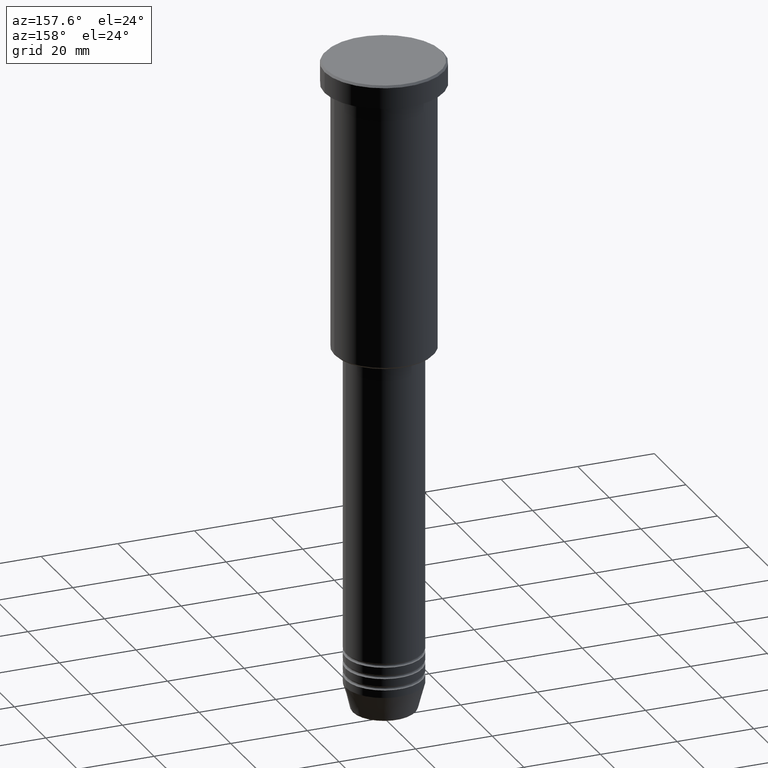
[diagram: clean part render]
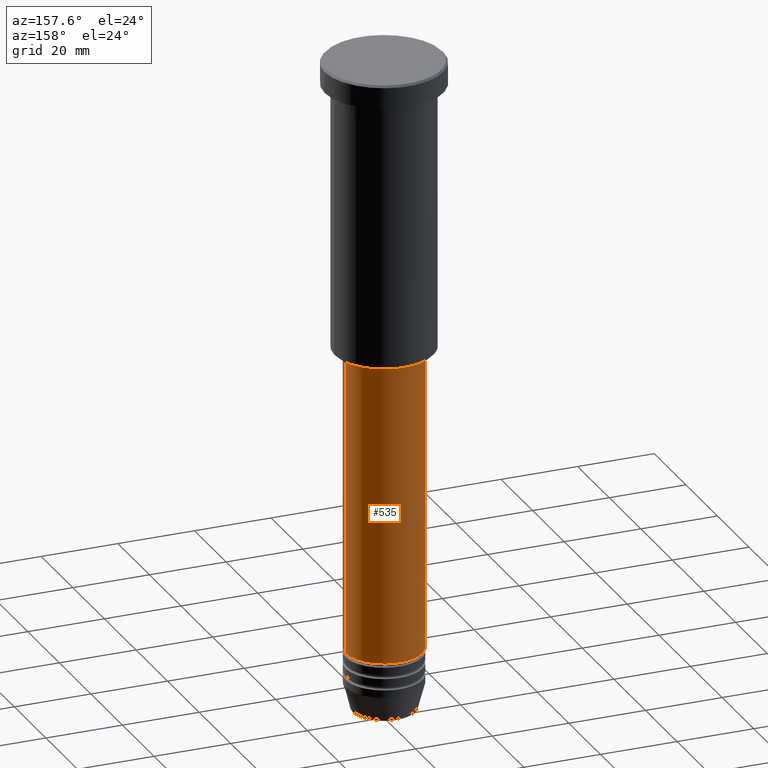
[diagram: same view with one face highlighted and labeled with its STEP entity id]
A machine part, auxiliary view. The second image highlights one B-rep face of the part: STEP entity #535.
In plain terms, the highlighted cylindrical surface (partial cylindrical patch) has radius 10 mm, axis along (-0, -0, 1).
Its self-contained STEP definition (entity closure, byte-faithful):
#26 = CARTESIAN_POINT ( 'NONE',  ( -10.00000000000000000, 1.224646799147353256E-15, -77.00000000000001421 ) ) ;
#59 = LINE ( 'NONE', #152, #946 ) ;
#128 = VERTEX_POINT ( 'NONE', #523 ) ;
#135 = CARTESIAN_POINT ( 'NONE',  ( 0.000000000000000000, 0.000000000000000000, 0.000000000000000000 ) ) ;
#152 = CARTESIAN_POINT ( 'NONE',  ( -10.00000000000000000, 1.224646799147353256E-15, 0.000000000000000000 ) ) ;
#168 = CIRCLE ( 'NONE', #1092, 10.00000000000000000 ) ;
#189 = VERTEX_POINT ( 'NONE', #1158 ) ;
#192 = CIRCLE ( 'NONE', #551, 10.00000000000000000 ) ;
#232 = CARTESIAN_POINT ( 'NONE',  ( -10.00000000000000000, 1.224646799147353256E-15, -154.9999999999999716 ) ) ;
#241 = CARTESIAN_POINT ( 'NONE',  ( 0.000000000000000000, 0.000000000000000000, -77.00000000000001421 ) ) ;
#263 = ORIENTED_EDGE ( 'NONE', *, *, #1141, .T. ) ;
#303 = ORIENTED_EDGE ( 'NONE', *, *, #615, .F. ) ;
#418 = CYLINDRICAL_SURFACE ( 'NONE', #929, 10.00000000000000000 ) ;
#457 = VERTEX_POINT ( 'NONE', #26 ) ;
#487 = ORIENTED_EDGE ( 'NONE', *, *, #591, .T. ) ;
#515 = DIRECTION ( 'NONE',  ( -0.000000000000000000, -0.000000000000000000, 1.000000000000000000 ) ) ;
#521 = DIRECTION ( 'NONE',  ( 1.000000000000000000, 0.000000000000000000, 0.000000000000000000 ) ) ;
#523 = CARTESIAN_POINT ( 'NONE',  ( 10.00000000000000000, 0.000000000000000000, -154.9999999999999716 ) ) ;
#535 = ADVANCED_FACE ( 'NONE', ( #795 ), #418, .T. ) ;
#551 = AXIS2_PLACEMENT_3D ( 'NONE', #826, #1172, #562 ) ;
#556 = VERTEX_POINT ( 'NONE', #232 ) ;
#562 = DIRECTION ( 'NONE',  ( 1.000000000000000000, 0.000000000000000000, 0.000000000000000000 ) ) ;
#591 = EDGE_CURVE ( 'NONE', #556, #457, #59, .T. ) ;
#614 = DIRECTION ( 'NONE',  ( 1.000000000000000000, 0.000000000000000000, 0.000000000000000000 ) ) ;
#615 = EDGE_CURVE ( 'NONE', #128, #189, #808, .T. ) ;
#663 = ORIENTED_EDGE ( 'NONE', *, *, #1104, .F. ) ;
#795 = FACE_OUTER_BOUND ( 'NONE', #803, .T. ) ;
#803 = EDGE_LOOP ( 'NONE', ( #263, #487, #663, #303 ) ) ;
#808 = LINE ( 'NONE', #819, #1126 ) ;
#819 = CARTESIAN_POINT ( 'NONE',  ( 10.00000000000000000, 0.000000000000000000, 0.000000000000000000 ) ) ;
#826 = CARTESIAN_POINT ( 'NONE',  ( 0.000000000000000000, 0.000000000000000000, -154.9999999999999716 ) ) ;
#900 = DIRECTION ( 'NONE',  ( -0.000000000000000000, -0.000000000000000000, 1.000000000000000000 ) ) ;
#929 = AXIS2_PLACEMENT_3D ( 'NONE', #135, #515, #521 ) ;
#946 = VECTOR ( 'NONE', #900, 1000.000000000000000 ) ;
#987 = DIRECTION ( 'NONE',  ( -0.000000000000000000, -0.000000000000000000, 1.000000000000000000 ) ) ;
#1092 = AXIS2_PLACEMENT_3D ( 'NONE', #241, #987, #614 ) ;
#1104 = EDGE_CURVE ( 'NONE', #189, #457, #168, .T. ) ;
#1126 = VECTOR ( 'NONE', #1168, 1000.000000000000000 ) ;
#1141 = EDGE_CURVE ( 'NONE', #128, #556, #192, .T. ) ;
#1158 = CARTESIAN_POINT ( 'NONE',  ( 10.00000000000000000, 0.000000000000000000, -77.00000000000001421 ) ) ;
#1168 = DIRECTION ( 'NONE',  ( -0.000000000000000000, -0.000000000000000000, 1.000000000000000000 ) ) ;
#1172 = DIRECTION ( 'NONE',  ( -0.000000000000000000, -0.000000000000000000, 1.000000000000000000 ) ) ;